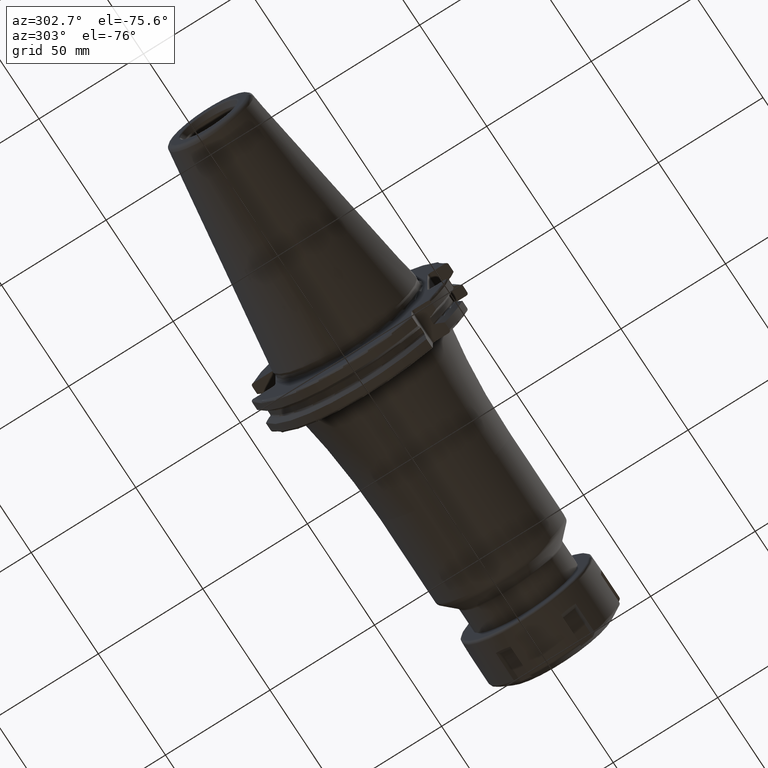
[diagram: clean part render]
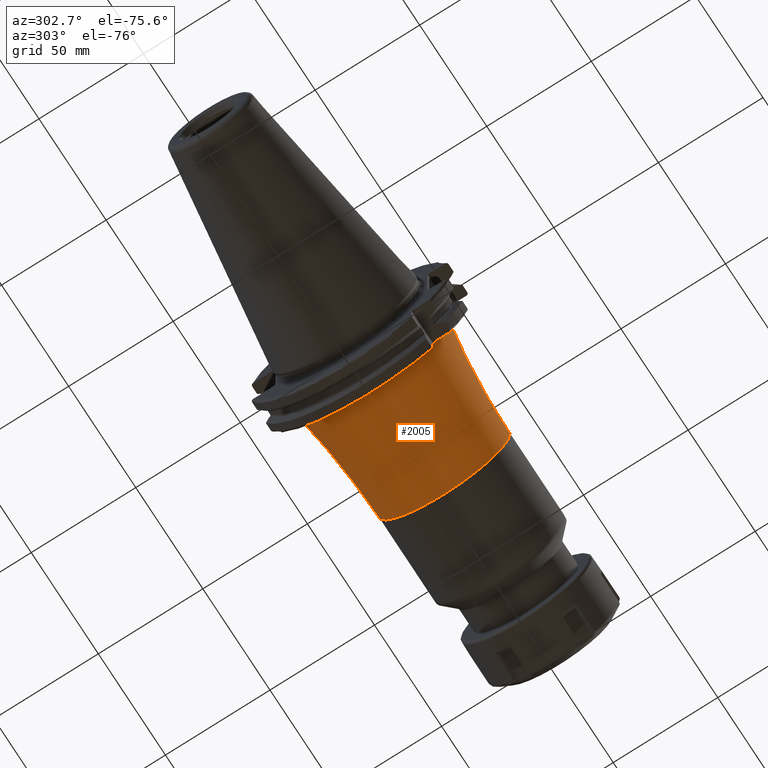
[diagram: same view with one face highlighted and labeled with its STEP entity id]
A machine part, auxiliary view. The second image highlights one B-rep face of the part: STEP entity #2005.
In plain terms, the highlighted toroidal blend (fillet) surface has major radius 331.5 mm and minor (blend) radius 300 mm.
Its self-contained STEP definition (entity closure, byte-faithful):
#254=CARTESIAN_POINT('',(1.905E1,0.E0,0.E0));
#255=DIRECTION('',(-1.E0,0.E0,0.E0));
#256=DIRECTION('',(0.E0,1.E0,0.E0));
#257=AXIS2_PLACEMENT_3D('',#254,#255,#256);
#264=CARTESIAN_POINT('',(2.069429530201E1,0.E0,0.E0));
#265=DIRECTION('',(1.E0,0.E0,0.E0));
#266=DIRECTION('',(0.E0,-1.E0,0.E0));
#267=AXIS2_PLACEMENT_3D('',#264,#265,#266);
#269=CARTESIAN_POINT('',(7.405E1,-3.315E2,-8.119408278347E-14));
#270=DIRECTION('',(0.E0,0.E0,1.E0));
#271=DIRECTION('',(0.E0,1.E0,0.E0));
#272=AXIS2_PLACEMENT_3D('',#269,#270,#271);
#274=CARTESIAN_POINT('',(7.405E1,3.315E2,4.059704139173E-14));
#275=DIRECTION('',(0.E0,0.E0,-1.E0));
#276=DIRECTION('',(0.E0,-1.E0,0.E0));
#277=AXIS2_PLACEMENT_3D('',#274,#275,#276);
#279=CARTESIAN_POINT('',(2.069429530201E1,3.53E1,-8.387778037985E0));
#280=CARTESIAN_POINT('',(2.052189301815E1,3.53E1,-8.522561523971E0));
#281=CARTESIAN_POINT('',(2.017016438476E1,3.53E1,-8.792741289021E0));
#282=CARTESIAN_POINT('',(1.962196582842E1,3.53E1,-9.200090499147E0));
#283=CARTESIAN_POINT('',(1.924290570398E1,3.53E1,-9.473169379165E0));
#284=CARTESIAN_POINT('',(1.905E1,3.53E1,-9.610125568513E0));
#286=CARTESIAN_POINT('',(7.405E1,0.E0,0.E0));
#287=DIRECTION('',(1.E0,0.E0,0.E0));
#288=DIRECTION('',(0.E0,-1.E0,0.E0));
#289=AXIS2_PLACEMENT_3D('',#286,#287,#288);
#1653=CARTESIAN_POINT('',(7.405E1,3.15E1,0.E0));
#1654=CARTESIAN_POINT('',(7.405E1,-3.15E1,0.E0));
#1655=VERTEX_POINT('',#1653);
#1656=VERTEX_POINT('',#1654);
#1657=CARTESIAN_POINT('',(1.905E1,3.658475793883E1,0.E0));
#1658=VERTEX_POINT('',#1657);
#1663=CARTESIAN_POINT('',(2.069429530201E1,-3.628284471227E1,0.E0));
#1664=CARTESIAN_POINT('',(2.069429530201E1,3.53E1,-8.387778037985E0));
#1665=VERTEX_POINT('',#1663);
#1666=VERTEX_POINT('',#1664);
#1693=VERTEX_POINT('',#284);
#1991=CARTESIAN_POINT('',(7.405E1,0.E0,0.E0));
#1992=DIRECTION('',(1.E0,0.E0,0.E0));
#1993=DIRECTION('',(0.E0,-1.E0,0.E0));
#1994=AXIS2_PLACEMENT_3D('',#1991,#1992,#1993);
#1995=TOROIDAL_SURFACE('',#1994,3.315E2,3.E2);
#1996=ORIENTED_EDGE('',*,*,#1947,.F.);
#1997=ORIENTED_EDGE('',*,*,#1974,.F.);
#1999=ORIENTED_EDGE('',*,*,#1998,.T.);
#2000=ORIENTED_EDGE('',*,*,#1970,.T.);
#2001=ORIENTED_EDGE('',*,*,#1985,.T.);
#2002=ORIENTED_EDGE('',*,*,#1852,.F.);
#2003=EDGE_LOOP('',(#1996,#1997,#1999,#2000,#2001,#2002));
#2004=FACE_OUTER_BOUND('',#2003,.F.);
#2005=ADVANCED_FACE('',(#2004),#1995,.F.);
#258=CIRCLE('',#257,3.658475793883E1);
#268=CIRCLE('',#267,3.628284471227E1);
#273=CIRCLE('',#272,3.E2);
#278=CIRCLE('',#277,3.E2);
#285=B_SPLINE_CURVE_WITH_KNOTS('',3,(#279,#280,#281,#282,#283,#284),
.UNSPECIFIED.,.F.,.F.,(4,1,1,4),(0.E0,3.333333333333E-1,6.666666666667E-1,1.E0),
.UNSPECIFIED.);
#290=CIRCLE('',#289,3.15E1);
#1852=EDGE_CURVE('',#1666,#1693,#285,.T.);
#1947=EDGE_CURVE('',#1665,#1666,#268,.T.);
#1970=EDGE_CURVE('',#1655,#1658,#278,.T.);
#1974=EDGE_CURVE('',#1656,#1665,#273,.T.);
#1985=EDGE_CURVE('',#1658,#1693,#258,.T.);
#1998=EDGE_CURVE('',#1656,#1655,#290,.T.);